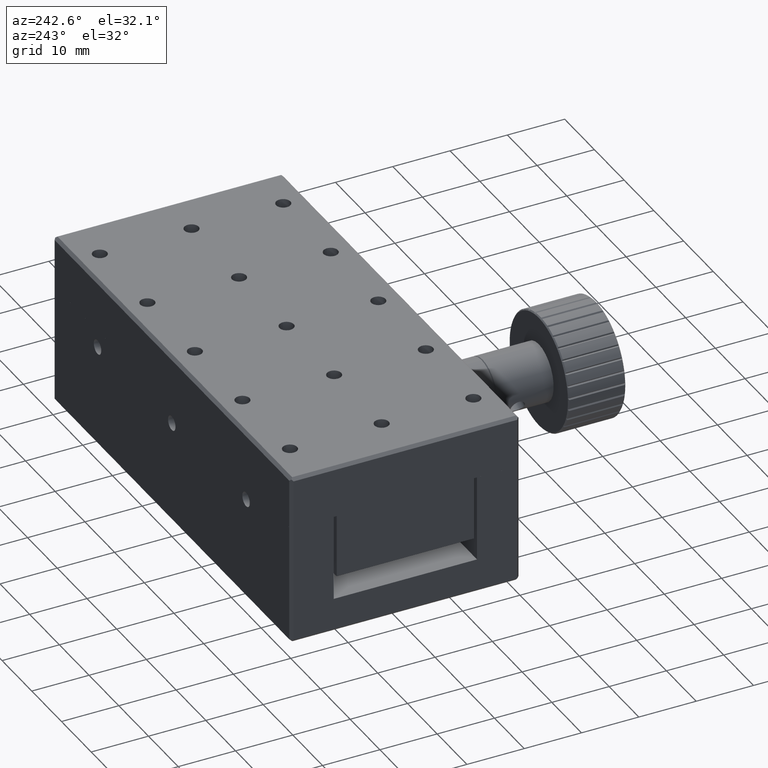
[diagram: clean part render]
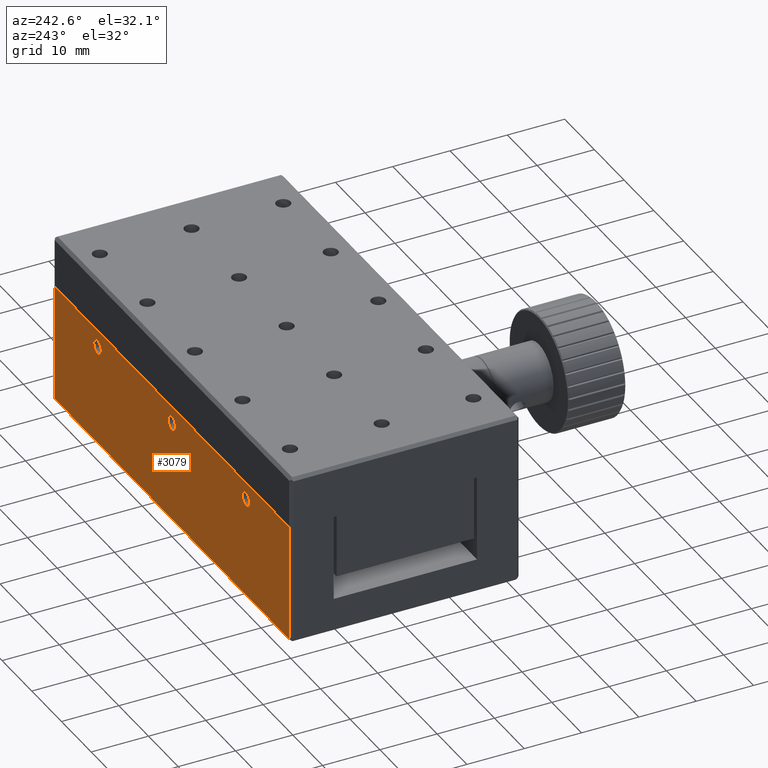
[diagram: same view with one face highlighted and labeled with its STEP entity id]
A machine part, auxiliary view. The second image highlights one B-rep face of the part: STEP entity #3079.
In plain terms, the highlighted planar face has unit normal (0, -1, 0).
Its self-contained STEP definition (entity closure, byte-faithful):
#157 = DIRECTION ( 'NONE',  ( 0.0000000000000000000, 0.0000000000000000000, -1.000000000000000000 ) ) ;
#583 = DIRECTION ( 'NONE',  ( -1.000000000000000000, -0.0000000000000000000, -0.0000000000000000000 ) ) ;
#644 = CIRCLE ( 'NONE', #18879, 1.249999999999997600 ) ;
#671 = CARTESIAN_POINT ( 'NONE',  ( 0.0000000000000000000, 20.00000000000000000, 0.5000000000000000000 ) ) ;
#708 = VECTOR ( 'NONE', #17268, 1000.000000000000000 ) ;
#743 = EDGE_CURVE ( 'NONE', #16273, #11243, #11439, .T. ) ;
#1005 = VECTOR ( 'NONE', #583, 1000.000000000000000 ) ;
#1163 = EDGE_CURVE ( 'NONE', #3419, #13067, #1749, .T. ) ;
#1290 = LINE ( 'NONE', #671, #17524 ) ;
#1377 = FACE_OUTER_BOUND ( 'NONE', #20238, .T. ) ;
#1749 = LINE ( 'NONE', #18962, #708 ) ;
#1921 = FACE_BOUND ( 'NONE', #4798, .T. ) ;
#2304 = ORIENTED_EDGE ( 'NONE', *, *, #15866, .F. ) ;
#2884 = AXIS2_PLACEMENT_3D ( 'NONE', #4154, #15461, #5776 ) ;
#3056 = CARTESIAN_POINT ( 'NONE',  ( -24.95714285699999700, 20.00000000000000000, 16.75000000000000400 ) ) ;
#3079 = ADVANCED_FACE ( 'NONE', ( #18621, #5746, #1921, #1377 ), #17935, .F. ) ;
#3419 = VERTEX_POINT ( 'NONE', #15687 ) ;
#3448 = EDGE_CURVE ( 'NONE', #9651, #11723, #4534, .T. ) ;
#3803 = EDGE_CURVE ( 'NONE', #14121, #4183, #644, .T. ) ;
#3865 = DIRECTION ( 'NONE',  ( 0.0000000000000000000, 1.000000000000000000, 0.0000000000000000000 ) ) ;
#4099 = VERTEX_POINT ( 'NONE', #5968 ) ;
#4154 = CARTESIAN_POINT ( 'NONE',  ( -24.95714285699999700, 20.00000000000000000, 18.00000000000000400 ) ) ;
#4183 = VERTEX_POINT ( 'NONE', #12527 ) ;
#4217 = DIRECTION ( 'NONE',  ( 0.0000000000000000000, 1.000000000000000000, 0.0000000000000000000 ) ) ;
#4438 = CIRCLE ( 'NONE', #4459, 1.249999999999997600 ) ;
#4459 = AXIS2_PLACEMENT_3D ( 'NONE', #9025, #20313, #10655 ) ;
#4534 = CIRCLE ( 'NONE', #10650, 1.249999999999997600 ) ;
#4662 = ORIENTED_EDGE ( 'NONE', *, *, #3448, .F. ) ;
#4798 = EDGE_LOOP ( 'NONE', ( #2304, #8972 ) ) ;
#4803 = CARTESIAN_POINT ( 'NONE',  ( 39.50000000000000000, 20.00000000000000000, 21.00000000000000400 ) ) ;
#5543 = EDGE_LOOP ( 'NONE', ( #4662, #8468 ) ) ;
#5746 = FACE_BOUND ( 'NONE', #5543, .T. ) ;
#5776 = DIRECTION ( 'NONE',  ( 0.0000000000000000000, 0.0000000000000000000, 1.000000000000000000 ) ) ;
#5968 = CARTESIAN_POINT ( 'NONE',  ( 0.04285714300000017400, 20.00000000000000000, 16.75000000000000400 ) ) ;
#6262 = CARTESIAN_POINT ( 'NONE',  ( 25.04285714300000300, 20.00000000000000000, 16.75000000000000400 ) ) ;
#6579 = DIRECTION ( 'NONE',  ( 0.0000000000000000000, 1.000000000000000000, 0.0000000000000000000 ) ) ;
#6623 = AXIS2_PLACEMENT_3D ( 'NONE', #13864, #4217, #15531 ) ;
#7220 = CARTESIAN_POINT ( 'NONE',  ( 39.50000000000000000, 20.00000000000000000, 10.75000000000000000 ) ) ;
#8240 = CIRCLE ( 'NONE', #6623, 1.249999999999997600 ) ;
#8277 = CARTESIAN_POINT ( 'NONE',  ( -39.50000000000000000, 20.00000000000000000, 21.00000000000000000 ) ) ;
#8468 = ORIENTED_EDGE ( 'NONE', *, *, #15864, .F. ) ;
#8972 = ORIENTED_EDGE ( 'NONE', *, *, #20174, .F. ) ;
#9025 = CARTESIAN_POINT ( 'NONE',  ( 25.04285714300000300, 20.00000000000000000, 18.00000000000000400 ) ) ;
#9631 = CARTESIAN_POINT ( 'NONE',  ( -24.95714285699999700, 20.00000000000000000, 18.00000000000000400 ) ) ;
#9651 = VERTEX_POINT ( 'NONE', #13263 ) ;
#9659 = ORIENTED_EDGE ( 'NONE', *, *, #743, .F. ) ;
#9665 = LINE ( 'NONE', #13559, #1005 ) ;
#9889 = DIRECTION ( 'NONE',  ( 0.0000000000000000000, -1.000000000000000000, 0.0000000000000000000 ) ) ;
#10650 = AXIS2_PLACEMENT_3D ( 'NONE', #13526, #3865, #15180 ) ;
#10655 = DIRECTION ( 'NONE',  ( 0.0000000000000000000, 0.0000000000000000000, 1.000000000000000000 ) ) ;
#11243 = VERTEX_POINT ( 'NONE', #4803 ) ;
#11285 = DIRECTION ( 'NONE',  ( 0.0000000000000000000, 0.0000000000000000000, 1.000000000000000000 ) ) ;
#11439 = LINE ( 'NONE', #7220, #19495 ) ;
#11470 = AXIS2_PLACEMENT_3D ( 'NONE', #8277, #9889, #157 ) ;
#11557 = ORIENTED_EDGE ( 'NONE', *, *, #20938, .F. ) ;
#11574 = CIRCLE ( 'NONE', #17090, 1.249999999999997600 ) ;
#11723 = VERTEX_POINT ( 'NONE', #6262 ) ;
#12057 = DIRECTION ( 'NONE',  ( 1.000000000000000000, 0.0000000000000000000, 0.0000000000000000000 ) ) ;
#12527 = CARTESIAN_POINT ( 'NONE',  ( -24.95714285699999700, 20.00000000000000000, 19.25000000000000000 ) ) ;
#12646 = ORIENTED_EDGE ( 'NONE', *, *, #3803, .F. ) ;
#12998 = ORIENTED_EDGE ( 'NONE', *, *, #16367, .F. ) ;
#13067 = VERTEX_POINT ( 'NONE', #14643 ) ;
#13263 = CARTESIAN_POINT ( 'NONE',  ( 25.04285714300000300, 20.00000000000000000, 19.25000000000000000 ) ) ;
#13364 = CARTESIAN_POINT ( 'NONE',  ( 39.50000000000000000, 19.99999999993800200, 0.4999999999379999300 ) ) ;
#13526 = CARTESIAN_POINT ( 'NONE',  ( 25.04285714300000300, 20.00000000000000000, 18.00000000000000400 ) ) ;
#13559 = CARTESIAN_POINT ( 'NONE',  ( 0.0000000000000000000, 20.00000000000000000, 21.00000000000000000 ) ) ;
#13739 = DIRECTION ( 'NONE',  ( -0.0000000000000000000, -0.0000000000000000000, 1.000000000000000000 ) ) ;
#13864 = CARTESIAN_POINT ( 'NONE',  ( 0.04285714300000002100, 20.00000000000000000, 18.00000000000000400 ) ) ;
#14121 = VERTEX_POINT ( 'NONE', #3056 ) ;
#14643 = CARTESIAN_POINT ( 'NONE',  ( -39.50000000000000000, 19.99999999993800200, 0.4999999999380001500 ) ) ;
#14935 = CARTESIAN_POINT ( 'NONE',  ( 0.04285714300000002100, 20.00000000000000000, 19.25000000000000000 ) ) ;
#15038 = ORIENTED_EDGE ( 'NONE', *, *, #1163, .F. ) ;
#15180 = DIRECTION ( 'NONE',  ( 0.0000000000000000000, 0.0000000000000000000, 1.000000000000000000 ) ) ;
#15461 = DIRECTION ( 'NONE',  ( 0.0000000000000000000, 1.000000000000000000, 0.0000000000000000000 ) ) ;
#15531 = DIRECTION ( 'NONE',  ( 0.0000000000000000000, 0.0000000000000000000, 1.000000000000000000 ) ) ;
#15687 = CARTESIAN_POINT ( 'NONE',  ( -39.50000000000000000, 20.00000000000000000, 21.00000000000000400 ) ) ;
#15864 = EDGE_CURVE ( 'NONE', #11723, #9651, #4438, .T. ) ;
#15866 = EDGE_CURVE ( 'NONE', #19828, #4099, #8240, .T. ) ;
#16248 = CARTESIAN_POINT ( 'NONE',  ( 0.04285714300000002100, 20.00000000000000000, 18.00000000000000400 ) ) ;
#16273 = VERTEX_POINT ( 'NONE', #13364 ) ;
#16367 = EDGE_CURVE ( 'NONE', #13067, #16273, #1290, .T. ) ;
#16817 = EDGE_CURVE ( 'NONE', #11243, #3419, #9665, .T. ) ;
#17090 = AXIS2_PLACEMENT_3D ( 'NONE', #16248, #6579, #17859 ) ;
#17268 = DIRECTION ( 'NONE',  ( 0.0000000000000000000, 0.0000000000000000000, -1.000000000000000000 ) ) ;
#17524 = VECTOR ( 'NONE', #12057, 1000.000000000000000 ) ;
#17859 = DIRECTION ( 'NONE',  ( 0.0000000000000000000, 0.0000000000000000000, 1.000000000000000000 ) ) ;
#17935 = PLANE ( 'NONE',  #11470 ) ;
#18013 = EDGE_LOOP ( 'NONE', ( #11557, #12646 ) ) ;
#18402 = CIRCLE ( 'NONE', #2884, 1.249999999999997600 ) ;
#18621 = FACE_BOUND ( 'NONE', #18013, .T. ) ;
#18802 = ORIENTED_EDGE ( 'NONE', *, *, #16817, .F. ) ;
#18879 = AXIS2_PLACEMENT_3D ( 'NONE', #9631, #20917, #11285 ) ;
#18962 = CARTESIAN_POINT ( 'NONE',  ( -39.50000000000000000, 20.00000000000000000, 10.75000000000000000 ) ) ;
#19495 = VECTOR ( 'NONE', #13739, 1000.000000000000000 ) ;
#19828 = VERTEX_POINT ( 'NONE', #14935 ) ;
#20174 = EDGE_CURVE ( 'NONE', #4099, #19828, #11574, .T. ) ;
#20238 = EDGE_LOOP ( 'NONE', ( #15038, #18802, #9659, #12998 ) ) ;
#20313 = DIRECTION ( 'NONE',  ( 0.0000000000000000000, 1.000000000000000000, 0.0000000000000000000 ) ) ;
#20917 = DIRECTION ( 'NONE',  ( 0.0000000000000000000, 1.000000000000000000, 0.0000000000000000000 ) ) ;
#20938 = EDGE_CURVE ( 'NONE', #4183, #14121, #18402, .T. ) ;